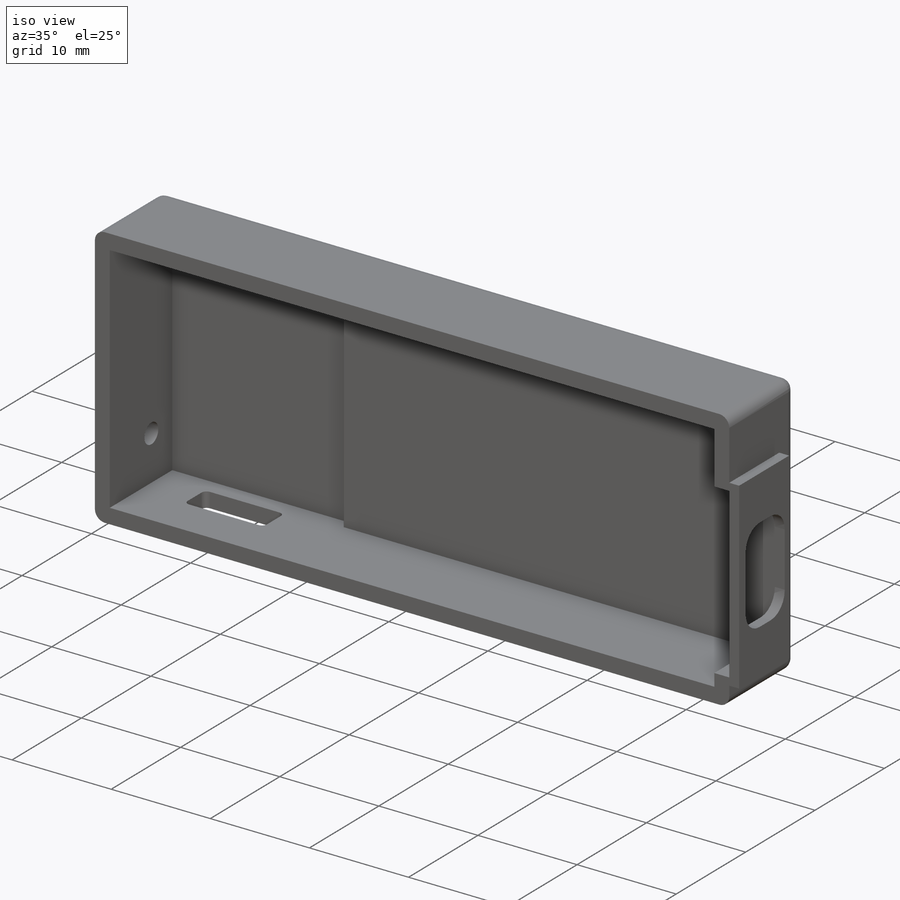
[diagram: iso view]
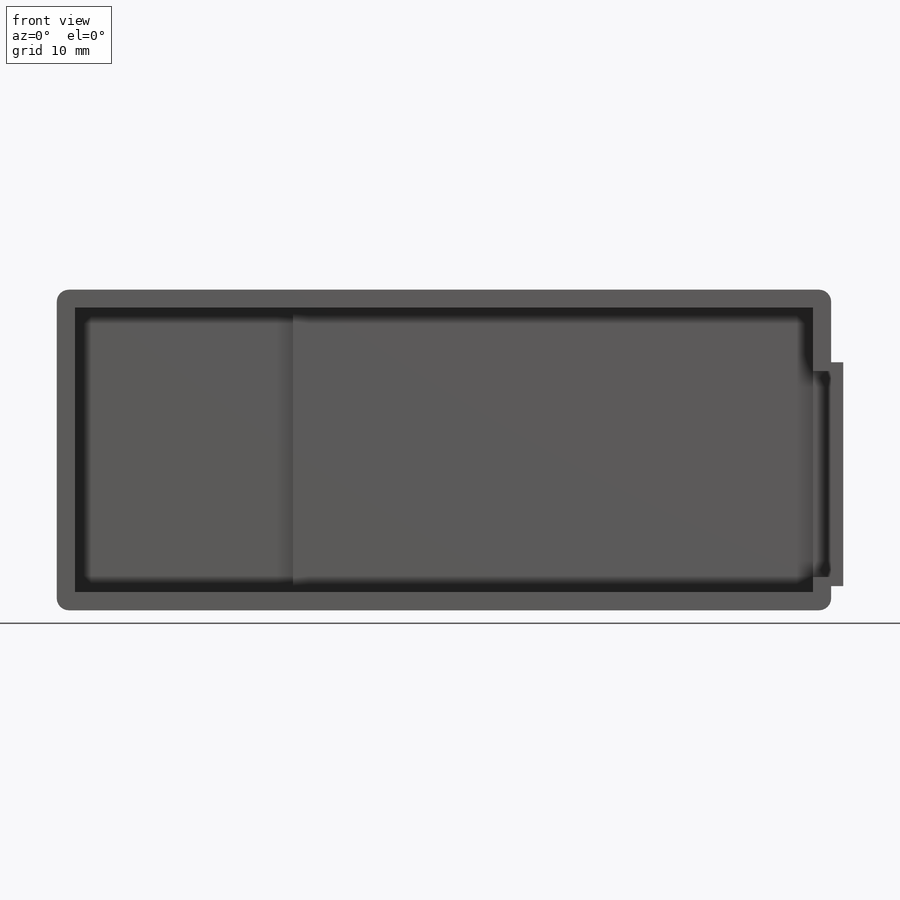
[diagram: front view]
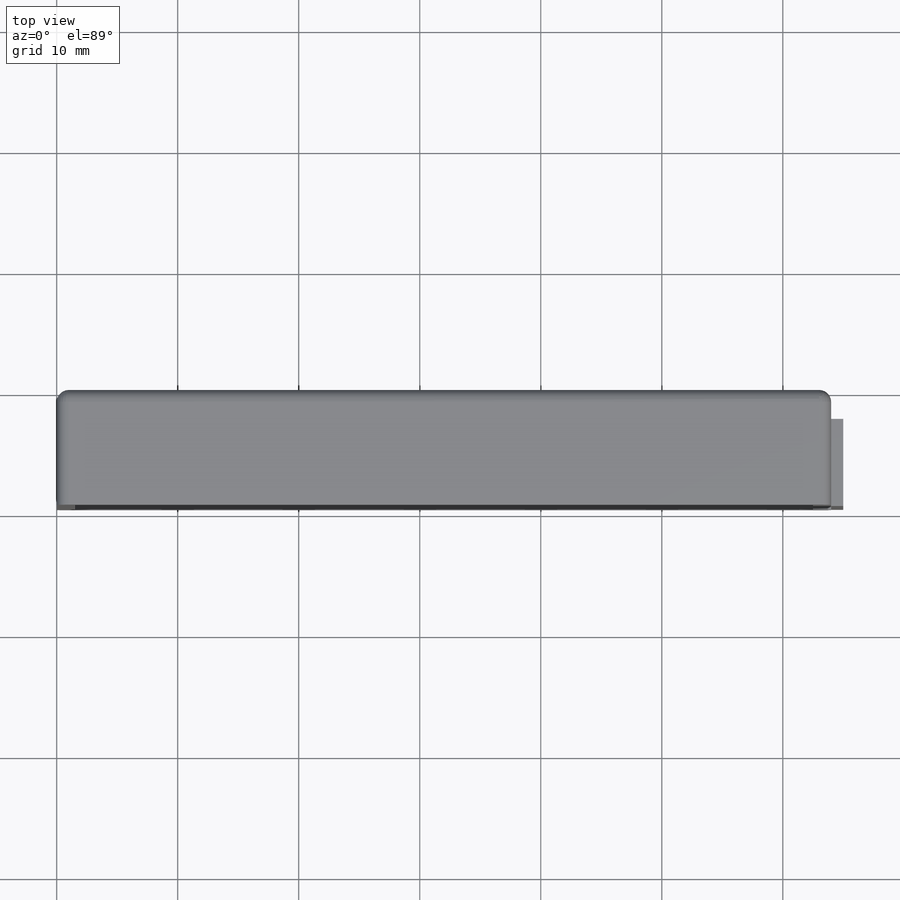
[diagram: top view]
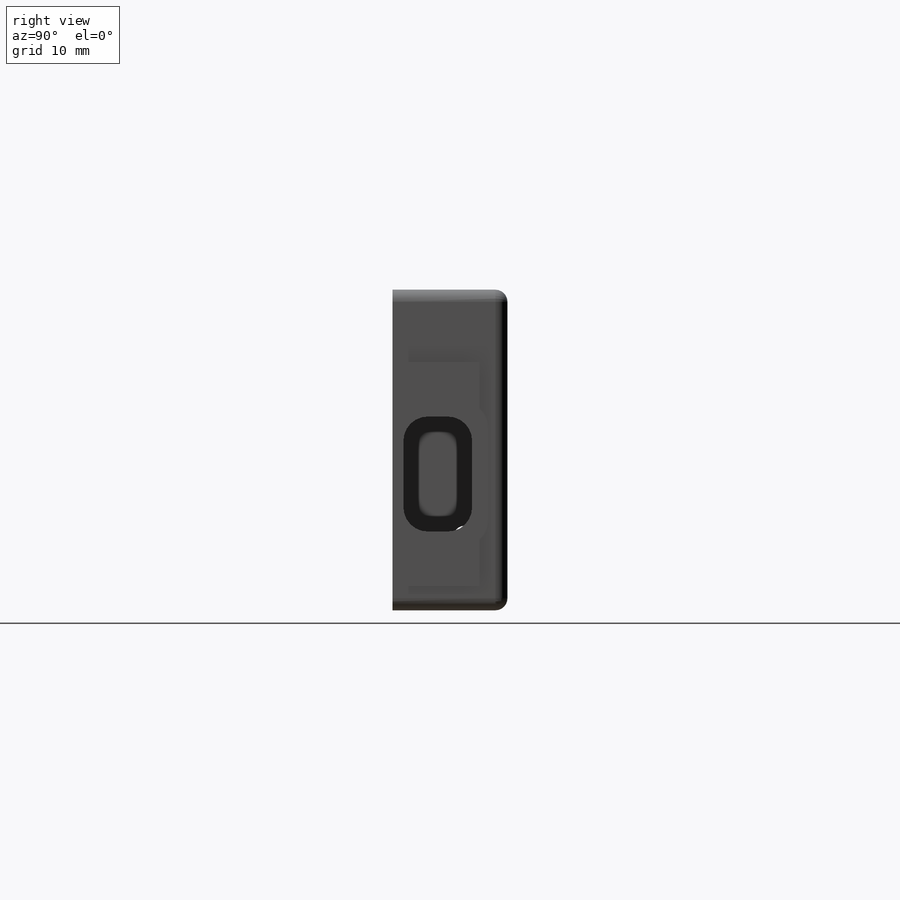
[diagram: right view]
SOLIDWORKS PART (.sldprt)
format: sldprt  version: not decoded by parser v0  size: 386,048 bytes
history: native  units: mm
features: sketch x9, fillet x8, cut_extrude x7, extrude x2, material x1 (+13 scaffold rows collapsed)
feature tree (40):
  scaffold x13  (default folders/planes/origin — collapsed)
  material  "Material <not specified>"
  sketch  "Sketch1"  dims[D1=26.5mm D2=64.0mm]
  extrude  "Boss-Extrude1"  Depth=10.5mm
  sketch  "Sketch2"  dims[c1.D1=2.0mm c1.D2=2.3mm c1.D3=2.0mm c1.D4=6.0mm c2.D3=7.2mm]
  extrude  "Boss-Extrude2"  Depth=1mm
  sketch  "Sketch3"  dims[D1=1.0mm]
  cut_extrude  "Cut-Extrude1"  Depth=71mm
  sketch  "Sketch4"  dims[c1.D5=0.5mm c1.D6=~1.83742mm c1.D1=2.2mm c1.D2=6.0mm c2.D6=6.0mm c2.D7=3.5mm]
  cut_extrude  "Cut-Extrude2"  Depth=2mm
  sketch  "Sketch5"  dims[c1.D1=~0.694653mm c1.D2=0.9mm c1.D3=~0.628666mm c1.D4=4.0mm c2.D1=6.5mm c2.D6=4.5mm c2.D5=2.0]
  cut_extrude  "Cut-Extrude3"  Depth=3mm
  sketch  "Sketch7"  dims[D1=1.5mm D2=1.5mm D3=1.5mm D4=1.5mm]
  cut_extrude  "Cut-Extrude4"  Depth=8mm
  sketch  "Sketch8"  dims[D1=18.0mm D2=23.5mm]
  cut_extrude  "Cut-Extrude6"  Depth=1mm
  fillet  "Fillet1"  Radius=1mm
  fillet  "Fillet6"  Radius=1mm
  fillet  "Fillet7"  Radius=1mm
  fillet  "Fillet8"  Radius=1mm
  sketch  "Sketch9"  dims[D1=0.5mm D2=6.0mm D3=2.2mm D4=3.0mm]
  cut_extrude  "Cut-Extrude7"  Depth=10mm
  sketch  "Sketch11"  dims[c1.D1=0.75mm c1.D2=0.75mm c2.D1=0.75mm c2.D3=0.0mm]
  cut_extrude  "Cut-Extrude9"  Depth=7mm
  fillet  "Fillet9"  Radius=2mm
  fillet  "Fillet10"  Radius=2mm
  fillet  "Fillet11"  Radius=2mm
  fillet  "Fillet12"  Radius=2mm
decode coverage: 26 of 26 modeling features carry decoded parameters
note: ~ marks probable driven/reference dimensions
note: suppression state not decoded; provenance and decode notes live in map.json
